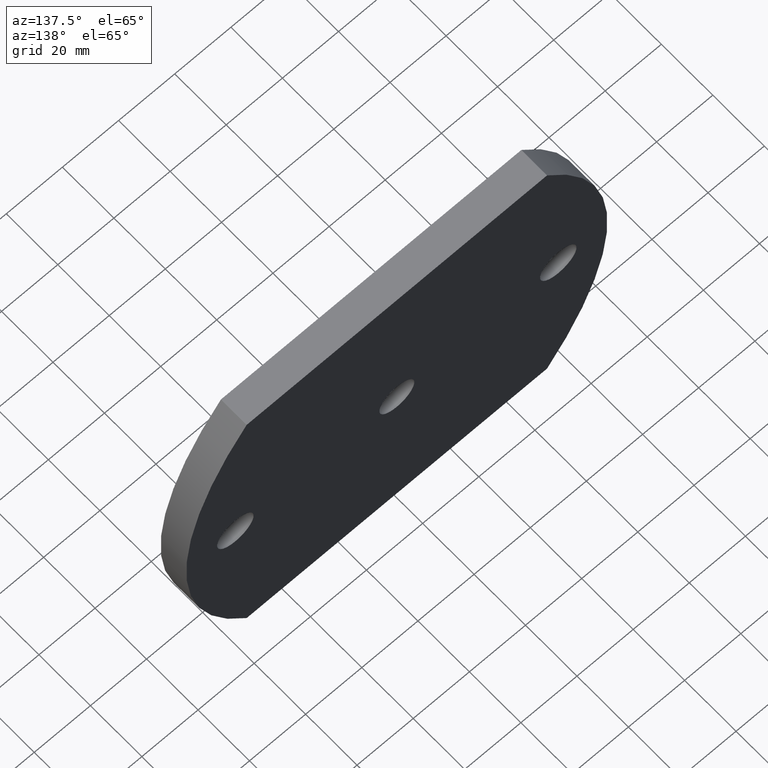
[diagram: clean part render]
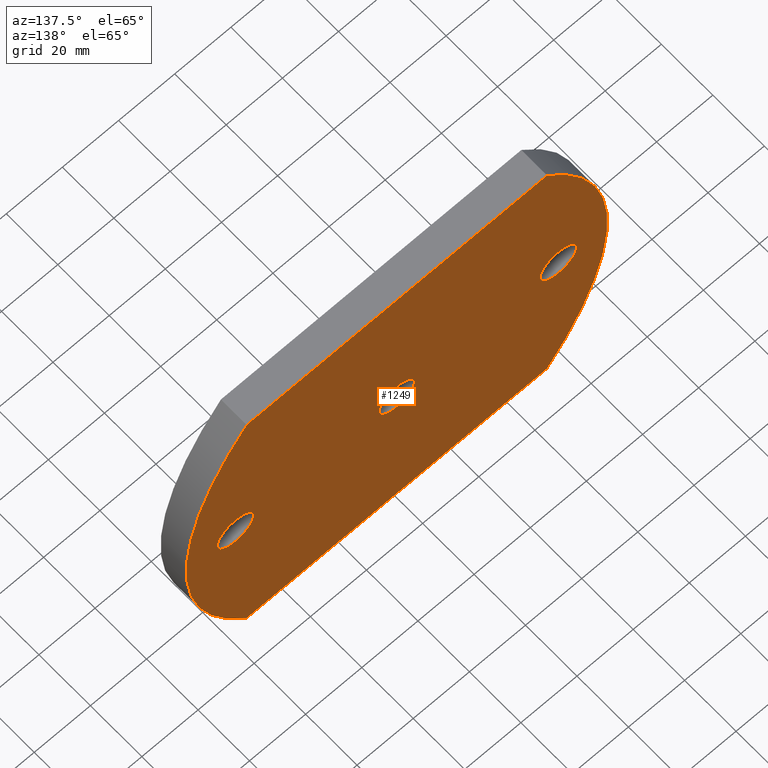
[diagram: same view with one face highlighted and labeled with its STEP entity id]
A machine part, auxiliary view. The second image highlights one B-rep face of the part: STEP entity #1249.
In plain terms, the highlighted planar face has unit normal (0, -1, 0).
Its self-contained STEP definition (entity closure, byte-faithful):
#81 = EDGE_CURVE ( 'NONE', #3441, #8683, #6983, .T. ) ;
#293 = VERTEX_POINT ( 'NONE', #5655 ) ;
#483 = DIRECTION ( 'NONE',  ( 0.0000000000000000000, 0.0000000000000000000, -1.000000000000000000 ) ) ;
#490 = FACE_BOUND ( 'NONE', #1492, .T. ) ;
#561 = DIRECTION ( 'NONE',  ( 0.0000000000000000000, 0.0000000000000000000, 1.000000000000000000 ) ) ;
#671 = EDGE_CURVE ( 'NONE', #6826, #6836, #9882, .T. ) ;
#935 = EDGE_LOOP ( 'NONE', ( #7044, #5729 ) ) ;
#1230 = CARTESIAN_POINT ( 'NONE',  ( -53.49999999999995000, 10.00000000000000000, -60.00000000000004300 ) ) ;
#1237 = FACE_OUTER_BOUND ( 'NONE', #5206, .T. ) ;
#1249 = ADVANCED_FACE ( 'NONE', ( #8323, #490, #9751, #1237 ), #2150, .F. ) ;
#1260 = DIRECTION ( 'NONE',  ( 1.000000000000000000, 0.0000000000000000000, 0.0000000000000000000 ) ) ;
#1263 = EDGE_CURVE ( 'NONE', #9382, #6178, #9259, .T. ) ;
#1294 = CARTESIAN_POINT ( 'NONE',  ( 57.50000000000000000, 10.00000000000000000, 0.0000000000000000000 ) ) ;
#1306 = VERTEX_POINT ( 'NONE', #6163 ) ;
#1349 = ORIENTED_EDGE ( 'NONE', *, *, #1263, .F. ) ;
#1492 = EDGE_LOOP ( 'NONE', ( #8281, #7538 ) ) ;
#1544 = DIRECTION ( 'NONE',  ( 0.0000000000000000000, 0.0000000000000000000, 1.000000000000000000 ) ) ;
#1722 = EDGE_CURVE ( 'NONE', #1306, #293, #9985, .T. ) ;
#1892 = CARTESIAN_POINT ( 'NONE',  ( 57.50000000000000000, 10.00000000000000000, -6.499999999999994700 ) ) ;
#1913 = DIRECTION ( 'NONE',  ( 0.0000000000000000000, 0.0000000000000000000, 1.000000000000000000 ) ) ;
#2150 = PLANE ( 'NONE',  #7200 ) ;
#2224 = CARTESIAN_POINT ( 'NONE',  ( -53.49999999999999300, 10.00000000000000000, -60.00000000000000000 ) ) ;
#2468 = CARTESIAN_POINT ( 'NONE',  ( -57.50000000000000000, 10.00000000000000000, -6.500000000000000900 ) ) ;
#2771 = ORIENTED_EDGE ( 'NONE', *, *, #81, .T. ) ;
#2808 = DIRECTION ( 'NONE',  ( 0.0000000000000000000, 1.000000000000000000, 0.0000000000000000000 ) ) ;
#2887 = VERTEX_POINT ( 'NONE', #8788 ) ;
#2938 = CIRCLE ( 'NONE', #6375, 94.47093023255810400 ) ;
#3033 = DIRECTION ( 'NONE',  ( 0.0000000000000000000, 1.000000000000000000, 0.0000000000000000000 ) ) ;
#3436 = ORIENTED_EDGE ( 'NONE', *, *, #7989, .T. ) ;
#3441 = VERTEX_POINT ( 'NONE', #6139 ) ;
#3753 = DIRECTION ( 'NONE',  ( -1.000000000000000000, -0.0000000000000000000, -0.0000000000000000000 ) ) ;
#3809 = CARTESIAN_POINT ( 'NONE',  ( 19.47093023255811100, 10.00000000000000000, 0.0000000000000000000 ) ) ;
#3964 = CARTESIAN_POINT ( 'NONE',  ( -57.50000000000000000, 10.00000000000000000, 0.0000000000000000000 ) ) ;
#4114 = AXIS2_PLACEMENT_3D ( 'NONE', #9846, #5264, #483 ) ;
#4255 = EDGE_CURVE ( 'NONE', #2887, #9590, #4801, .T. ) ;
#4375 = DIRECTION ( 'NONE',  ( 0.0000000000000000000, -0.0000000000000000000, -1.000000000000000000 ) ) ;
#4461 = VECTOR ( 'NONE', #3753, 1000.000000000000000 ) ;
#4801 = LINE ( 'NONE', #2224, #4461 ) ;
#5177 = DIRECTION ( 'NONE',  ( 0.0000000000000000000, -1.000000000000000000, 0.0000000000000000000 ) ) ;
#5206 = EDGE_LOOP ( 'NONE', ( #8018, #5613, #3436, #2771 ) ) ;
#5258 = AXIS2_PLACEMENT_3D ( 'NONE', #10033, #9313, #5381 ) ;
#5264 = DIRECTION ( 'NONE',  ( 0.0000000000000000000, 1.000000000000000000, -0.0000000000000000000 ) ) ;
#5381 = DIRECTION ( 'NONE',  ( 0.0000000000000000000, 0.0000000000000000000, 1.000000000000000000 ) ) ;
#5386 = CIRCLE ( 'NONE', #5258, 6.499999999999994700 ) ;
#5466 = AXIS2_PLACEMENT_3D ( 'NONE', #7233, #6483, #1913 ) ;
#5555 = EDGE_CURVE ( 'NONE', #6178, #9382, #5386, .T. ) ;
#5613 = ORIENTED_EDGE ( 'NONE', *, *, #4255, .T. ) ;
#5655 = CARTESIAN_POINT ( 'NONE',  ( 0.0000000000000000000, 10.00000000000000000, 6.250000000000000000 ) ) ;
#5703 = CIRCLE ( 'NONE', #5466, 6.500000000000000900 ) ;
#5729 = ORIENTED_EDGE ( 'NONE', *, *, #1722, .F. ) ;
#6075 = EDGE_LOOP ( 'NONE', ( #1349, #7672 ) ) ;
#6104 = DIRECTION ( 'NONE',  ( 0.0000000000000000000, 0.0000000000000000000, 1.000000000000000000 ) ) ;
#6127 = DIRECTION ( 'NONE',  ( 0.0000000000000000000, 0.0000000000000000000, 1.000000000000000000 ) ) ;
#6139 = CARTESIAN_POINT ( 'NONE',  ( -53.49999999999999300, 10.00000000000000000, 60.00000000000000000 ) ) ;
#6163 = CARTESIAN_POINT ( 'NONE',  ( 7.654042494670957600E-016, 10.00000000000000000, -6.250000000000000000 ) ) ;
#6178 = VERTEX_POINT ( 'NONE', #1892 ) ;
#6312 = AXIS2_PLACEMENT_3D ( 'NONE', #9363, #7063, #561 ) ;
#6375 = AXIS2_PLACEMENT_3D ( 'NONE', #3809, #8450, #6127 ) ;
#6483 = DIRECTION ( 'NONE',  ( 0.0000000000000000000, 1.000000000000000000, 0.0000000000000000000 ) ) ;
#6676 = AXIS2_PLACEMENT_3D ( 'NONE', #1294, #7582, #6104 ) ;
#6752 = AXIS2_PLACEMENT_3D ( 'NONE', #7467, #2808, #8194 ) ;
#6826 = VERTEX_POINT ( 'NONE', #9459 ) ;
#6836 = VERTEX_POINT ( 'NONE', #2468 ) ;
#6858 = VECTOR ( 'NONE', #1260, 1000.000000000000000 ) ;
#6983 = LINE ( 'NONE', #7645, #6858 ) ;
#7044 = ORIENTED_EDGE ( 'NONE', *, *, #8671, .F. ) ;
#7063 = DIRECTION ( 'NONE',  ( 0.0000000000000000000, 1.000000000000000000, 0.0000000000000000000 ) ) ;
#7200 = AXIS2_PLACEMENT_3D ( 'NONE', #8972, #5177, #4375 ) ;
#7233 = CARTESIAN_POINT ( 'NONE',  ( -57.50000000000000000, 10.00000000000000000, 0.0000000000000000000 ) ) ;
#7441 = CARTESIAN_POINT ( 'NONE',  ( 53.50000000000000700, 10.00000000000000000, 60.00000000000000000 ) ) ;
#7467 = CARTESIAN_POINT ( 'NONE',  ( 0.0000000000000000000, 10.00000000000000000, 0.0000000000000000000 ) ) ;
#7538 = ORIENTED_EDGE ( 'NONE', *, *, #9520, .F. ) ;
#7582 = DIRECTION ( 'NONE',  ( 0.0000000000000000000, 1.000000000000000000, 0.0000000000000000000 ) ) ;
#7645 = CARTESIAN_POINT ( 'NONE',  ( -53.49999999999999300, 10.00000000000000000, 60.00000000000000000 ) ) ;
#7672 = ORIENTED_EDGE ( 'NONE', *, *, #5555, .F. ) ;
#7737 = AXIS2_PLACEMENT_3D ( 'NONE', #3964, #3033, #1544 ) ;
#7930 = CIRCLE ( 'NONE', #6312, 6.250000000000000000 ) ;
#7989 = EDGE_CURVE ( 'NONE', #9590, #3441, #2938, .T. ) ;
#7996 = CARTESIAN_POINT ( 'NONE',  ( 57.50000000000000000, 10.00000000000000000, 6.499999999999994700 ) ) ;
#8018 = ORIENTED_EDGE ( 'NONE', *, *, #9243, .T. ) ;
#8194 = DIRECTION ( 'NONE',  ( 0.0000000000000000000, 0.0000000000000000000, 1.000000000000000000 ) ) ;
#8281 = ORIENTED_EDGE ( 'NONE', *, *, #671, .F. ) ;
#8284 = CIRCLE ( 'NONE', #4114, 94.47093023255816000 ) ;
#8323 = FACE_BOUND ( 'NONE', #6075, .T. ) ;
#8450 = DIRECTION ( 'NONE',  ( 0.0000000000000000000, 1.000000000000000000, 0.0000000000000000000 ) ) ;
#8671 = EDGE_CURVE ( 'NONE', #293, #1306, #7930, .T. ) ;
#8683 = VERTEX_POINT ( 'NONE', #7441 ) ;
#8788 = CARTESIAN_POINT ( 'NONE',  ( 53.50000000000000700, 10.00000000000000000, -60.00000000000000000 ) ) ;
#8972 = CARTESIAN_POINT ( 'NONE',  ( -19.47093023255816400, 10.00000000000000000, 0.0000000000000000000 ) ) ;
#9243 = EDGE_CURVE ( 'NONE', #8683, #2887, #8284, .T. ) ;
#9259 = CIRCLE ( 'NONE', #6676, 6.499999999999994700 ) ;
#9313 = DIRECTION ( 'NONE',  ( 0.0000000000000000000, 1.000000000000000000, 0.0000000000000000000 ) ) ;
#9363 = CARTESIAN_POINT ( 'NONE',  ( 0.0000000000000000000, 10.00000000000000000, 0.0000000000000000000 ) ) ;
#9382 = VERTEX_POINT ( 'NONE', #7996 ) ;
#9459 = CARTESIAN_POINT ( 'NONE',  ( -57.50000000000000000, 10.00000000000000000, 6.500000000000000900 ) ) ;
#9520 = EDGE_CURVE ( 'NONE', #6836, #6826, #5703, .T. ) ;
#9590 = VERTEX_POINT ( 'NONE', #1230 ) ;
#9751 = FACE_BOUND ( 'NONE', #935, .T. ) ;
#9846 = CARTESIAN_POINT ( 'NONE',  ( -19.47093023255816400, 10.00000000000000000, 0.0000000000000000000 ) ) ;
#9882 = CIRCLE ( 'NONE', #7737, 6.500000000000000900 ) ;
#9985 = CIRCLE ( 'NONE', #6752, 6.250000000000000000 ) ;
#10033 = CARTESIAN_POINT ( 'NONE',  ( 57.50000000000000000, 10.00000000000000000, 0.0000000000000000000 ) ) ;